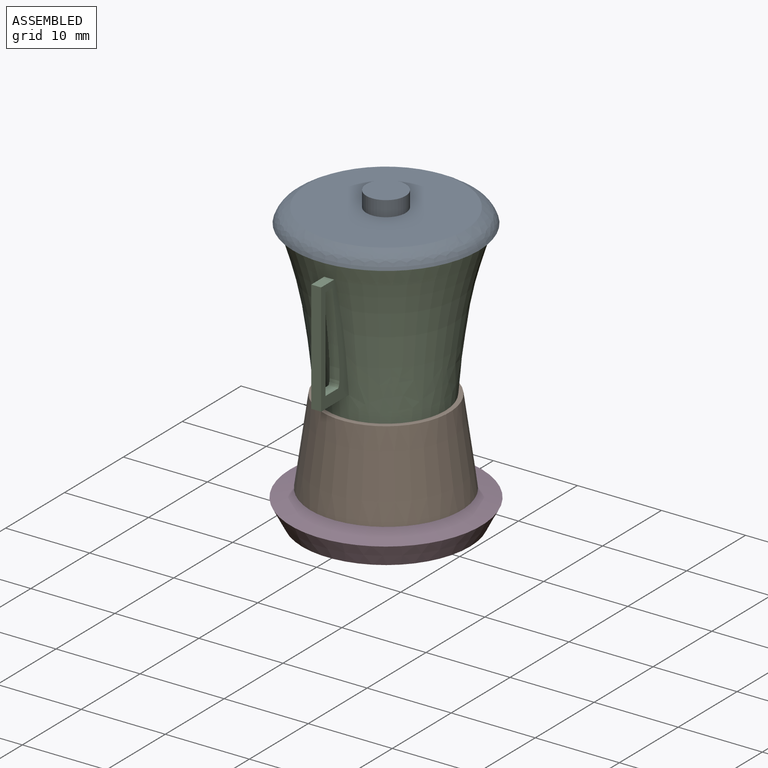
[diagram: assembled view]
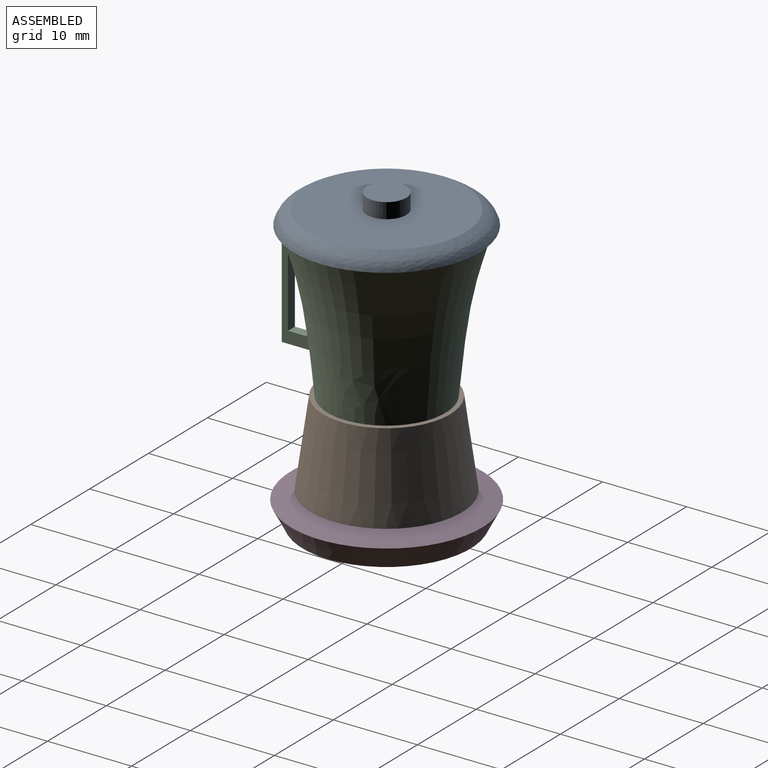
[diagram: assembled view, second angle]
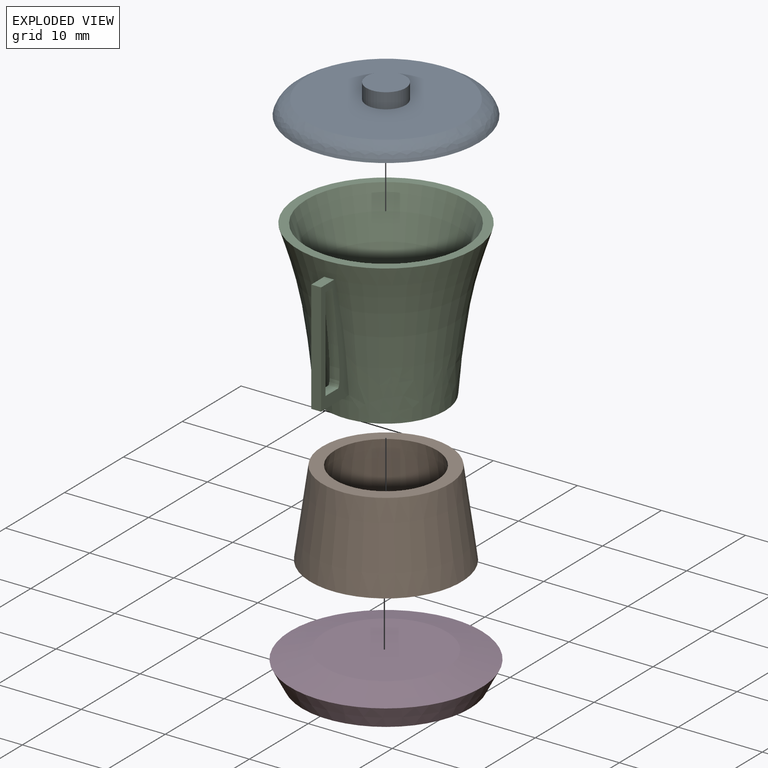
[diagram: exploded view]
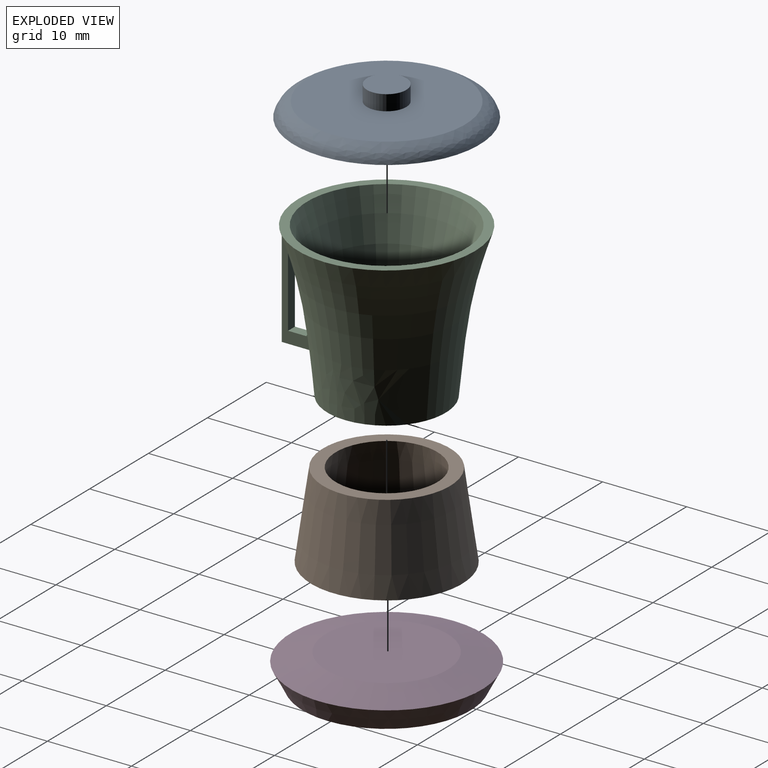
[diagram: exploded view, second angle]
ASSEMBLY  parts=4 mates=3
PART A: 5 faces, bbox 22.1x22.1x3.5 mm
  f0: plane 4.68x4.68mm, normal (0,0,1), area 17.2mm2, adj f1
  f1: cylinder r=2.34mm len=4.68mm, axis (0,0,1), area 27mm2, adj f0,f2
  f2: plane 18.7x18.7mm, normal (0,0,1), area 257.5mm2, adj f1,f3
  f3: revolved ~22.12x22.12mm, area 162.8mm2, adj f2,f4
  f4: plane 22.12x22.12mm, normal (0,0,-1), area 384.2mm2, adj f3
PART B: 5 faces, bbox 17.9x17.9x10.1 mm
  f0: plane 15.12x15.12mm, normal (0,0,1), area 64.7mm2, adj f1,f3
  f1: cone r=8.97mm half-angle=7.9deg, axis (0,0,-1), area 532.2mm2, adj f0,f2
  f2: plane 17.95x17.95mm, normal (0,0,-1), area 253mm2, adj f1
  f3: cone r=7.49mm half-angle=7.9deg, axis (0,0,-1), area 364.7mm2, adj f0,f4
  f4: plane 14.5x14.5mm, normal (0,0,1), area 165.2mm2, adj f3
PART C: 16 faces, bbox 21x22.5x18.4 mm
  f0: cone r=7.03mm half-angle=89.5deg, axis (0,0,1), area 67.8mm2, adj f13,f14
  f1: plane 13.36x4.71mm, normal (-1,0,0), area 28.1mm2, adj f5,f6,f7,f8,f9,f10,f11,f12
  f2: plane 13.36x4.73mm, normal (1,0,0), area 28.3mm2, adj f5,f6,f7,f8,f9,f10,f11,f12
  f3: cone r=7.04mm half-angle=89.5deg, axis (0,0,1), area 155.6mm2, adj f5
  f4: plane 21x21mm, normal (0,0,1), area 66mm2, adj f5,f13
  f5: revolved ~21x21mm, area 1945.7mm2, adj f1,f2,f3,f4,f6,f7
  f6: plane 2.23x1.17mm, normal (0,0,1), area 2.6mm2, adj f1,f2,f5,f8
  f7: plane 4.73x1.17mm, normal (0,0,-1), area 5.5mm2, adj f1,f2,f5,f8
  f8: plane 13.36x1.17mm, normal (0,-1,0), area 15.6mm2, adj f1,f2,f6,f7
  f9: extruded ~11.14x1.23mm, area 13.2mm2, adj f1,f2,f10,f12
  f10: plane 1.18x1.17mm, normal (0,0,-1), area 1.4mm2, adj f1,f2,f9,f11
  f11: plane 11.14x1.17mm, normal (0,1,0), area 13mm2, adj f1,f2,f10,f12
  f12: plane 2.16x1.17mm, normal (0,0,1), area 2.5mm2, adj f1,f2,f9,f11
  f13: revolved ~18.9x18.9mm, area 1644.8mm2, adj f0,f4
  f14: cylinder r=4mm len=7.99mm, axis (0,0,-1), area 29.8mm2, adj f0,f15
  f15: plane 7.99x7.99mm, normal (0,0,1), area 50.1mm2, adj f14
PART D: 4 faces, bbox 22.7x22.7x3.6 mm
  f0: cone r=9.99mm half-angle=27.6deg, axis (0,0,1), area 198.6mm2, adj f1,f3
  f1: cone r=9.99mm half-angle=76.7deg, axis (0,0,-1), area 321.9mm2, adj f0
  f2: plane 14.47x14.47mm, normal (0,0,1), area 164.4mm2, adj f3
  f3: cone r=11.36mm half-angle=76.2deg, axis (0,0,-1), area 248.1mm2, adj f0,f2
PLACE A t=(-18,20.62,-21.29)mm
PLACE B t=(-19.58,20.62,-14.5)mm
PLACE C t=(-19.26,20.62,-17.45)mm
PLACE D t=(-20.45,20.62,-12.03)mm
MATE fastened C.f0 <-> A.f1  axis (0,0,1) through (21.82,20.62,20.09)mm
MATE fastened D.f0 <-> B.f1  axis (0,0,1) through (21.82,20.62,-8.39)mm
MATE fastened B.f1 <-> C.f0  axis (0,0,-1) through (21.82,20.62,1.76)mm
